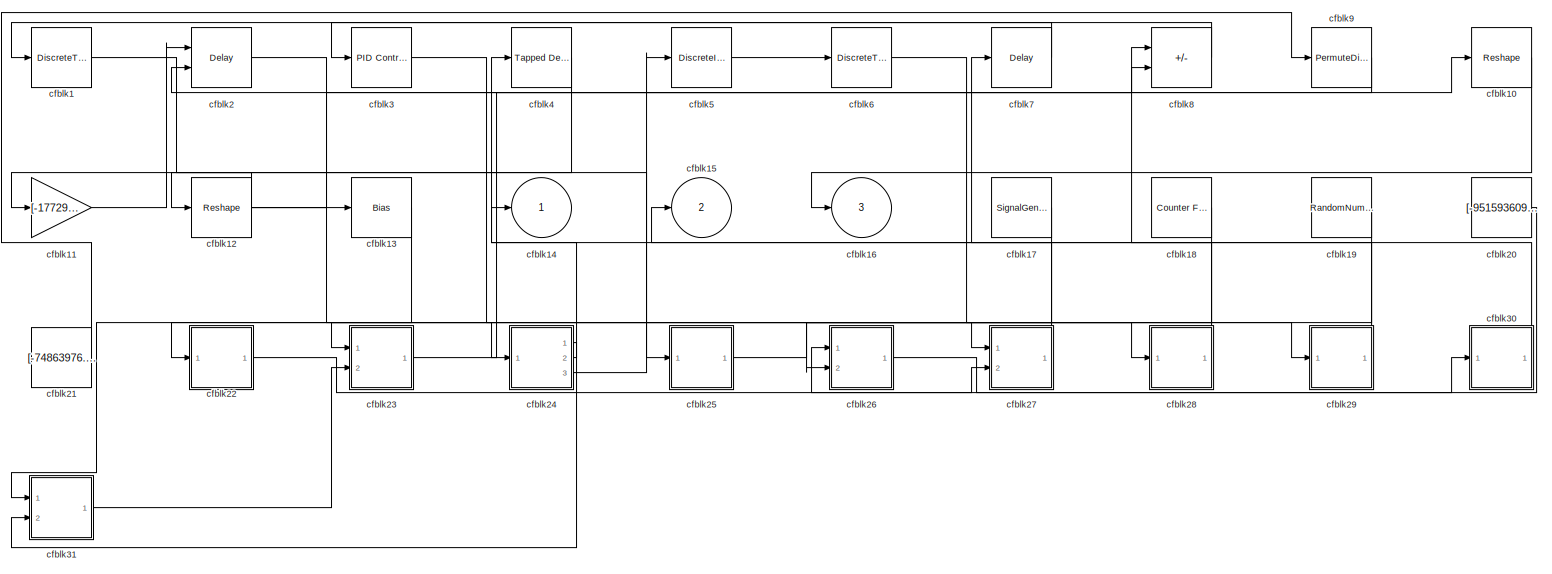
[diagram: root canvas - part 1/1, most of the canvas]
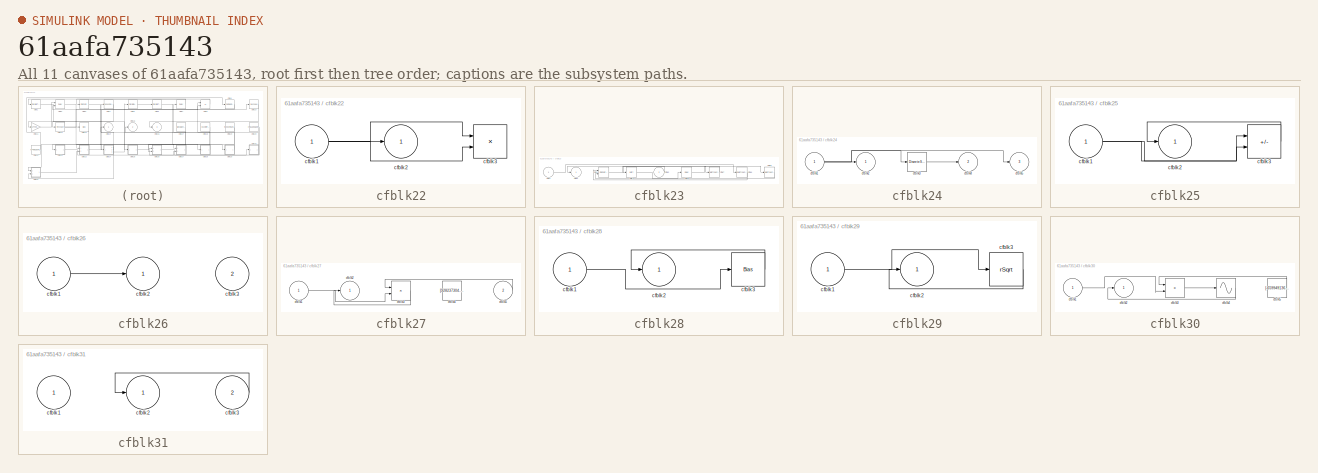
[diagram: thumbnail index - all 11 canvases of the model, root first then tree order]
MODEL slx_61aafa735143
KIND model
CONFIG AbsTol = auto
CONFIG EnableMultiTasking = off
CONFIG FixedStep = auto
CONFIG MaxStep = auto
CONFIG MinStep = auto
CONFIG RelTol = 1e-3
CONFIG SampleTimeConstraint = Unconstrained
CONFIG SolverName = VariableStepAuto
CONFIG StartTime = 0.0
CONFIG StopTime = 10.0
BLOCK [DiscreteTransferFcn] cfblk1
  InputPortMap = u0
  Ports = [1, 1]
  SampleTime = 1
BLOCK [Reshape] cfblk10
  Ports = [1, 1]
BLOCK [Gain] cfblk11
  Gain = [-177292613.087705]
BLOCK [Reshape] cfblk12
  Ports = [1, 1]
BLOCK [Bias] cfblk13
  Bias = [499757242.597765]
  SaturateOnIntegerOverflow = off
BLOCK [Outport] cfblk14
BLOCK [Outport] cfblk15
  Port = 2
BLOCK [Outport] cfblk16
  Port = 3
BLOCK [SignalGenerator] cfblk17
  Amplitude = [485159983.109157]
  Ports = [0, 1]
  Units = rad/sec
BLOCK [Reference] cfblk18  REF=simulink/Sources/Counter
Free-Running
  Ports = [0, 1]
  SourceBlock = simulink/Sources/Counter\nFree-Running
  SourceProductBaseCode = SL
  SourceType = Counter Free-Running
BLOCK [RandomNumber] cfblk19
  Mean = [-35182.019633]
  SampleTime = 0.1
  Seed = [457593607.000000]
  Variance = [55820.568766]
BLOCK [Delay] cfblk2
  InputPortMap = u0,e6
  Ports = [2, 1]
  SampleTime = 1
  ShowEnablePort = on
BLOCK [Constant] cfblk20
  SampleTime = 1
  Value = [-951593609.250259]
BLOCK [Constant] cfblk21
  SampleTime = 1
  Value = [-74863976.294657]
BLOCK [SubSystem] cfblk22
  Ports = [1, 1]
  RequestExecContextInheritance = off
BLOCK [Inport] cfblk22/cfblk1
BLOCK [Outport] cfblk22/cfblk2
BLOCK [Product] cfblk22/cfblk3
  Ports = [2, 1]
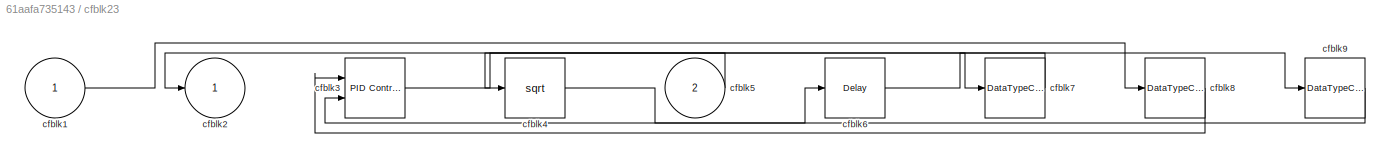
BLOCK [SubSystem] cfblk23
  Ports = [2, 1]
  RequestExecContextInheritance = off
BLOCK [Inport] cfblk23/cfblk1
BLOCK [Outport] cfblk23/cfblk2
BLOCK [Reference] cfblk23/cfblk3  REF=slpidlib/PID Controller (2DOF)
  Ports = [2, 1]
  SourceBlock = slpidlib/PID Controller (2DOF)
  SourceProductBaseCode = SL
  SourceType = PID 2dof
BLOCK [Sqrt] cfblk23/cfblk4
BLOCK [Inport] cfblk23/cfblk5
  Port = 2
BLOCK [Delay] cfblk23/cfblk6
  InputPortMap = u0
  Ports = [1, 1]
  SampleTime = 1
BLOCK [DataTypeConversion] cfblk23/cfblk7
  RndMeth = Floor
  SaturateOnIntegerOverflow = off
BLOCK [DataTypeConversion] cfblk23/cfblk8
  RndMeth = Floor
  SaturateOnIntegerOverflow = off
BLOCK [DataTypeConversion] cfblk23/cfblk9
  RndMeth = Floor
  SaturateOnIntegerOverflow = off
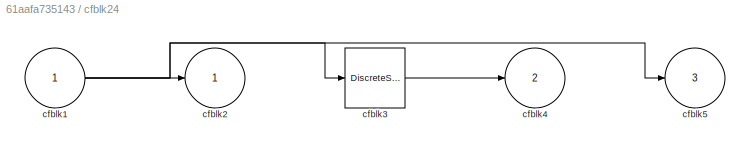
BLOCK [SubSystem] cfblk24
  Ports = [1, 3]
  RequestExecContextInheritance = off
BLOCK [Inport] cfblk24/cfblk1
BLOCK [Outport] cfblk24/cfblk2
BLOCK [DiscreteStateSpace] cfblk24/cfblk3
BLOCK [Outport] cfblk24/cfblk4
  Port = 2
BLOCK [Outport] cfblk24/cfblk5
  Port = 3
BLOCK [SubSystem] cfblk25
  Ports = [1, 1]
  RequestExecContextInheritance = off
BLOCK [Inport] cfblk25/cfblk1
BLOCK [Outport] cfblk25/cfblk2
BLOCK [Sum] cfblk25/cfblk3
  IconShape = rectangular
  Inputs = --
  Ports = [2, 1]
BLOCK [SubSystem] cfblk26
  Ports = [2, 1]
  RequestExecContextInheritance = off
BLOCK [Inport] cfblk26/cfblk1
BLOCK [Outport] cfblk26/cfblk2
BLOCK [Inport] cfblk26/cfblk3
  Port = 2
BLOCK [SubSystem] cfblk27
  Ports = [2, 1]
  RequestExecContextInheritance = off
BLOCK [Inport] cfblk27/cfblk1
BLOCK [Outport] cfblk27/cfblk2
BLOCK [Product] cfblk27/cfblk3
  Ports = [2, 1]
BLOCK [Constant] cfblk27/cfblk4
  SampleTime = 1
  Value = [928237304.715467]
BLOCK [Inport] cfblk27/cfblk5
  Port = 2
BLOCK [SubSystem] cfblk28
  Ports = [1, 1]
  RequestExecContextInheritance = off
BLOCK [Inport] cfblk28/cfblk1
BLOCK [Outport] cfblk28/cfblk2
BLOCK [Bias] cfblk28/cfblk3
  Bias = [-885167113.336685]
  SaturateOnIntegerOverflow = off
BLOCK [SubSystem] cfblk29
  Ports = [1, 1]
  RequestExecContextInheritance = off
BLOCK [Inport] cfblk29/cfblk1
BLOCK [Outport] cfblk29/cfblk2
BLOCK [Sqrt] cfblk29/cfblk3
  AlgorithmType = Newton-Raphson
  Operator = rSqrt
BLOCK [Reference] cfblk3  REF=slpidlib/PID Controller
  Ports = [1, 1]
  SourceBlock = slpidlib/PID Controller
  SourceProductBaseCode = SL
  SourceType = PID 1dof
BLOCK [SubSystem] cfblk30
  Ports = [1, 1]
  RequestExecContextInheritance = off
BLOCK [Inport] cfblk30/cfblk1
BLOCK [Outport] cfblk30/cfblk2
BLOCK [Product] cfblk30/cfblk3
  Inputs = **
  Ports = [2, 1]
BLOCK [Sin] cfblk30/cfblk4
  Ports = [1, 1]
  SampleTime = 0
  TimeSource = Use external signal
BLOCK [Constant] cfblk30/cfblk5
  SampleTime = 1
  Value = [-659949136.946708]
BLOCK [SubSystem] cfblk31
  Ports = [2, 1]
  RequestExecContextInheritance = off
BLOCK [Inport] cfblk31/cfblk1
BLOCK [Outport] cfblk31/cfblk2
BLOCK [Inport] cfblk31/cfblk3
  Port = 2
BLOCK [Reference] cfblk4  REF=simulink/Discrete/Tapped Delay
  Ports = [1, 1]
  SourceBlock = simulink/Discrete/Tapped Delay
  SourceProductBaseCode = SL
  SourceType = Tapped Delay Line
BLOCK [DiscreteIntegrator] cfblk5
  ICPrevOutput = DiscIntNeverNeededParam
  ICPrevScaledInput = DiscIntNeverNeededParam
  InitialConditionSetting = Auto
  Ports = [1, 1]
BLOCK [DiscreteTransferFcn] cfblk6
  InputPortMap = u0
  Ports = [1, 1]
  SampleTime = 1
BLOCK [Delay] cfblk7
  InputPortMap = u0
  Ports = [1, 1]
  SampleTime = 1
BLOCK [Sum] cfblk8
  IconShape = rectangular
  Inputs = +-
  Ports = [2, 1]
BLOCK [PermuteDimensions] cfblk9
LINE cfblk10:1 -> cfblk16:1
LINE cfblk11:1 -> cfblk2:1
NET cfblk12:1 -> cfblk10:1, cfblk11:1, cfblk13:1
LINE cfblk13:1 -> cfblk31:1
LINE cfblk17:1 -> cfblk26:2
LINE cfblk18:1 -> cfblk23:1
LINE cfblk19:1 -> cfblk22:1
LINE cfblk1:1 -> cfblk25:1
LINE cfblk20:1 -> cfblk26:1
LINE cfblk21:1 -> cfblk9:1
NET cfblk22/cfblk1:1 -> cfblk22/cfblk2:1, cfblk22/cfblk3:1, cfblk22/cfblk3:2
LINE cfblk22:1 -> cfblk27:2
LINE cfblk23/cfblk1:1 -> cfblk23/cfblk8:1
LINE cfblk23/cfblk3:1 -> cfblk23/cfblk7:1
LINE cfblk23/cfblk4:1 -> cfblk23/cfblk6:1
LINE cfblk23/cfblk5:1 -> cfblk23/cfblk2:1
LINE cfblk23/cfblk6:1 -> cfblk23/cfblk9:1
LINE cfblk23/cfblk7:1 -> cfblk23/cfblk4:1
LINE cfblk23/cfblk8:1 -> cfblk23/cfblk3:1
LINE cfblk23/cfblk9:1 -> cfblk23/cfblk3:2
LINE cfblk23:1 -> cfblk8:2
NET cfblk24/cfblk1:1 -> cfblk24/cfblk2:1, cfblk24/cfblk3:1, cfblk24/cfblk5:1
LINE cfblk24/cfblk3:1 -> cfblk24/cfblk4:1
LINE cfblk24:1 -> cfblk31:2
LINE cfblk24:2 -> cfblk14:1
LINE cfblk24:3 -> cfblk5:1
NET cfblk25/cfblk1:1 -> cfblk25/cfblk3:1, cfblk25/cfblk3:2
LINE cfblk25/cfblk3:1 -> cfblk25/cfblk2:1
LINE cfblk25:1 -> cfblk27:1
LINE cfblk26/cfblk1:1 -> cfblk26/cfblk2:1
LINE cfblk26:1 -> cfblk30:1
LINE cfblk27/cfblk1:1 -> cfblk27/cfblk3:2
LINE cfblk27/cfblk3:1 -> cfblk27/cfblk2:1
LINE cfblk27/cfblk5:1 -> cfblk27/cfblk3:1
LINE cfblk27:1 -> cfblk15:1
LINE cfblk28/cfblk1:1 -> cfblk28/cfblk3:1
LINE cfblk28/cfblk3:1 -> cfblk28/cfblk2:1
LINE cfblk28:1 -> cfblk8:1
LINE cfblk29/cfblk1:1 -> cfblk29/cfblk3:1
LINE cfblk29/cfblk3:1 -> cfblk29/cfblk2:1
LINE cfblk29:1 -> cfblk7:1
LINE cfblk2:1 -> cfblk24:1
LINE cfblk30/cfblk1:1 -> cfblk30/cfblk3:2
LINE cfblk30/cfblk3:1 -> cfblk30/cfblk4:1
LINE cfblk30/cfblk4:1 -> cfblk30/cfblk2:1
LINE cfblk30/cfblk5:1 -> cfblk30/cfblk3:1
LINE cfblk30:1 -> cfblk4:1
LINE cfblk31/cfblk3:1 -> cfblk31/cfblk2:1
LINE cfblk31:1 -> cfblk23:2
LINE cfblk3:1 -> cfblk29:1
LINE cfblk4:1 -> cfblk12:1
LINE cfblk5:1 -> cfblk6:1
LINE cfblk6:1 -> cfblk28:1
LINE cfblk7:1 -> cfblk1:1
LINE cfblk8:1 -> cfblk3:1
LINE cfblk9:1 -> cfblk2:2
note: NET lines group one-source signal fan-out (src -> all destinations, sorted); 1:1 wires keep LINE
